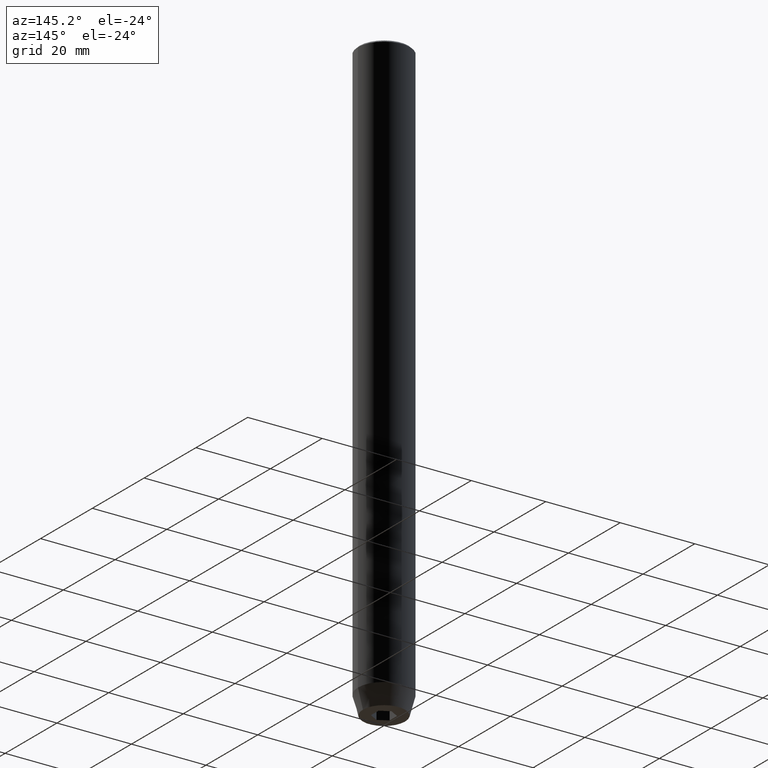
[diagram: clean part render]
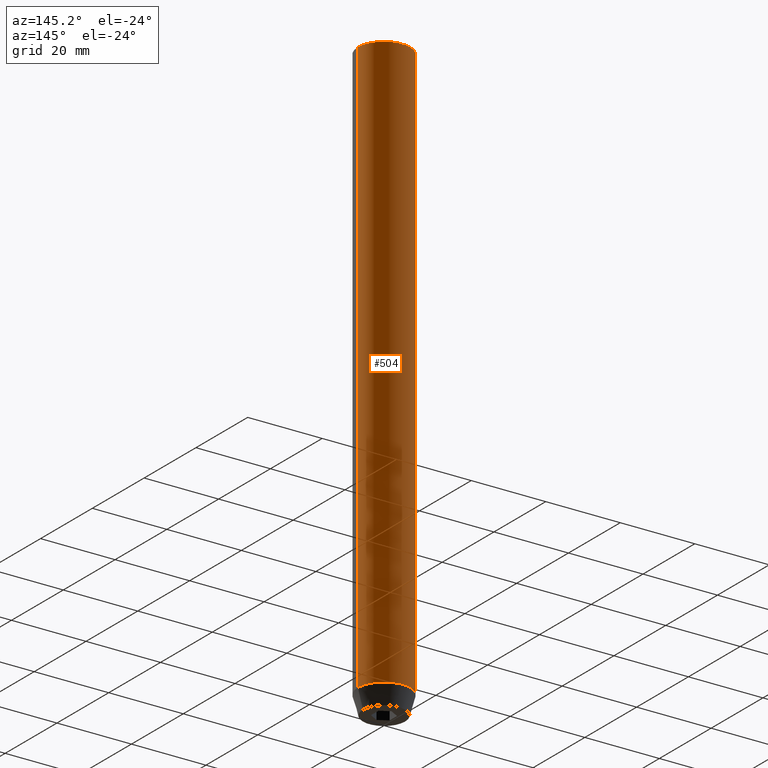
[diagram: same view with one face highlighted and labeled with its STEP entity id]
A machine part, auxiliary view. The second image highlights one B-rep face of the part: STEP entity #504.
In plain terms, the highlighted cylindrical surface (edge-blend (fillet) strip) has radius 7 mm, axis along (-0, -0, 1).
Its self-contained STEP definition (entity closure, byte-faithful):
#18 = FACE_OUTER_BOUND ( 'NONE', #515, .T. ) ;
#29 = CIRCLE ( 'NONE', #176, 7.000000000000000000 ) ;
#33 = CARTESIAN_POINT ( 'NONE',  ( 7.000000000000000000, 0.000000000000000000, 0.000000000000000000 ) ) ;
#48 = DIRECTION ( 'NONE',  ( -0.000000000000000000, -0.000000000000000000, 1.000000000000000000 ) ) ;
#68 = ORIENTED_EDGE ( 'NONE', *, *, #294, .T. ) ;
#81 = DIRECTION ( 'NONE',  ( -0.000000000000000000, -0.000000000000000000, 1.000000000000000000 ) ) ;
#85 = VECTOR ( 'NONE', #485, 1000.000000000000000 ) ;
#87 = CARTESIAN_POINT ( 'NONE',  ( -7.000000000000000000, 8.572527594031473190E-16, -0.5000000000000186517 ) ) ;
#88 = AXIS2_PLACEMENT_3D ( 'NONE', #246, #572, #253 ) ;
#94 = VERTEX_POINT ( 'NONE', #264 ) ;
#114 = CYLINDRICAL_SURFACE ( 'NONE', #88, 7.000000000000000000 ) ;
#137 = CIRCLE ( 'NONE', #510, 7.000000000000000000 ) ;
#138 = CARTESIAN_POINT ( 'NONE',  ( -7.000000000000000000, 8.572527594031473190E-16, 0.000000000000000000 ) ) ;
#176 = AXIS2_PLACEMENT_3D ( 'NONE', #455, #81, #541 ) ;
#194 = VERTEX_POINT ( 'NONE', #248 ) ;
#214 = LINE ( 'NONE', #33, #85 ) ;
#246 = CARTESIAN_POINT ( 'NONE',  ( 0.000000000000000000, 0.000000000000000000, 0.000000000000000000 ) ) ;
#248 = CARTESIAN_POINT ( 'NONE',  ( -7.000000000000000000, 8.572527594031473190E-16, -154.9999999999999716 ) ) ;
#253 = DIRECTION ( 'NONE',  ( 1.000000000000000000, 0.000000000000000000, 0.000000000000000000 ) ) ;
#257 = EDGE_CURVE ( 'NONE', #584, #94, #214, .T. ) ;
#264 = CARTESIAN_POINT ( 'NONE',  ( 7.000000000000000000, 0.000000000000000000, -0.5000000000000186517 ) ) ;
#266 = LINE ( 'NONE', #138, #519 ) ;
#294 = EDGE_CURVE ( 'NONE', #584, #194, #29, .T. ) ;
#307 = EDGE_CURVE ( 'NONE', #355, #94, #137, .T. ) ;
#351 = CARTESIAN_POINT ( 'NONE',  ( 7.000000000000000000, 0.000000000000000000, -154.9999999999999716 ) ) ;
#355 = VERTEX_POINT ( 'NONE', #87 ) ;
#375 = EDGE_CURVE ( 'NONE', #194, #355, #266, .T. ) ;
#398 = ORIENTED_EDGE ( 'NONE', *, *, #257, .F. ) ;
#445 = DIRECTION ( 'NONE',  ( 1.000000000000000000, 0.000000000000000000, 0.000000000000000000 ) ) ;
#455 = CARTESIAN_POINT ( 'NONE',  ( 0.000000000000000000, 0.000000000000000000, -154.9999999999999716 ) ) ;
#485 = DIRECTION ( 'NONE',  ( -0.000000000000000000, -0.000000000000000000, 1.000000000000000000 ) ) ;
#497 = CARTESIAN_POINT ( 'NONE',  ( 0.000000000000000000, 0.000000000000000000, -0.5000000000000186517 ) ) ;
#503 = ORIENTED_EDGE ( 'NONE', *, *, #307, .T. ) ;
#504 = ADVANCED_FACE ( 'NONE', ( #18 ), #114, .T. ) ;
#505 = DIRECTION ( 'NONE',  ( 0.000000000000000000, 0.000000000000000000, -1.000000000000000000 ) ) ;
#510 = AXIS2_PLACEMENT_3D ( 'NONE', #497, #505, #445 ) ;
#515 = EDGE_LOOP ( 'NONE', ( #68, #576, #503, #398 ) ) ;
#519 = VECTOR ( 'NONE', #48, 1000.000000000000000 ) ;
#541 = DIRECTION ( 'NONE',  ( 1.000000000000000000, 0.000000000000000000, 0.000000000000000000 ) ) ;
#572 = DIRECTION ( 'NONE',  ( -0.000000000000000000, -0.000000000000000000, 1.000000000000000000 ) ) ;
#576 = ORIENTED_EDGE ( 'NONE', *, *, #375, .T. ) ;
#584 = VERTEX_POINT ( 'NONE', #351 ) ;